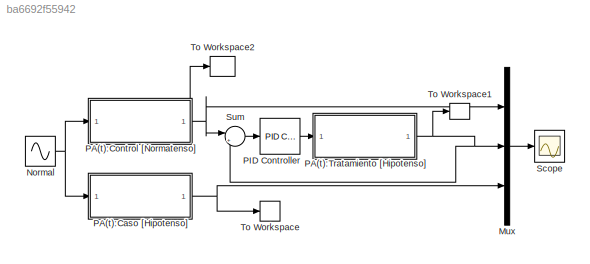
MODEL slx_ba6692f55942
KIND model
CONFIG AbsTol = auto
CONFIG EnableMultiTasking = off
CONFIG FixedStep = auto
CONFIG MaxStep = 1E-3
CONFIG MinStep = auto
CONFIG RelTol = 1e-3
CONFIG SampleTimeConstraint = Unconstrained
CONFIG SolverName = ode45
CONFIG StartTime = 0.0
CONFIG StopTime = 10
BLOCK [Mux] Mux
  DisplayOption = bar
  Inputs = 3
BLOCK [Sin] Normal
  Bias = 0.8
  Frequency = ((2*pi)*(95/60))
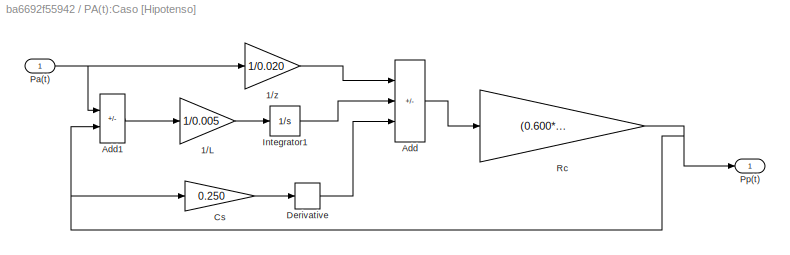
BLOCK [SubSystem] PA(t):Caso [Hipotenso]
BLOCK [Gain] PA(t):Caso [Hipotenso]/1//L
  Gain = 1/0.005
BLOCK [Gain] PA(t):Caso [Hipotenso]/1//z
  Gain = 1/0.020
BLOCK [Sum] PA(t):Caso [Hipotenso]/Add
  IconShape = rectangular
  Inputs = ++-
BLOCK [Sum] PA(t):Caso [Hipotenso]/Add1
  IconShape = rectangular
  Inputs = +-
BLOCK [Gain] PA(t):Caso [Hipotenso]/Cs
  Gain = 0.250
BLOCK [Derivative] PA(t):Caso [Hipotenso]/Derivative
BLOCK [Integrator] PA(t):Caso [Hipotenso]/Integrator1
BLOCK [Inport] PA(t):Caso [Hipotenso]/Pa(t)
BLOCK [Outport] PA(t):Caso [Hipotenso]/Pp(t)
BLOCK [Gain] PA(t):Caso [Hipotenso]/Rc
  Gain = (0.600*0.020)/(0.600+0.020)
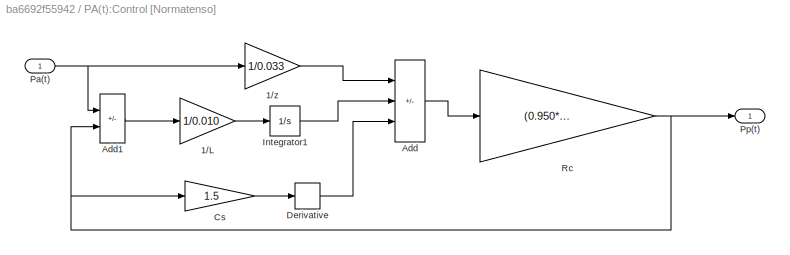
BLOCK [SubSystem] PA(t):Control [Normatenso]
BLOCK [Gain] PA(t):Control [Normatenso]/1//L
  Gain = 1/0.010
BLOCK [Gain] PA(t):Control [Normatenso]/1//z
  Gain = 1/0.033
BLOCK [Sum] PA(t):Control [Normatenso]/Add
  IconShape = rectangular
  Inputs = ++-
BLOCK [Sum] PA(t):Control [Normatenso]/Add1
  IconShape = rectangular
  Inputs = +-
BLOCK [Gain] PA(t):Control [Normatenso]/Cs
  Gain = 1.5
BLOCK [Derivative] PA(t):Control [Normatenso]/Derivative
BLOCK [Integrator] PA(t):Control [Normatenso]/Integrator1
BLOCK [Inport] PA(t):Control [Normatenso]/Pa(t)
BLOCK [Outport] PA(t):Control [Normatenso]/Pp(t)
BLOCK [Gain] PA(t):Control [Normatenso]/Rc
  Gain = (0.950*0.033)/(0.950+0.033)
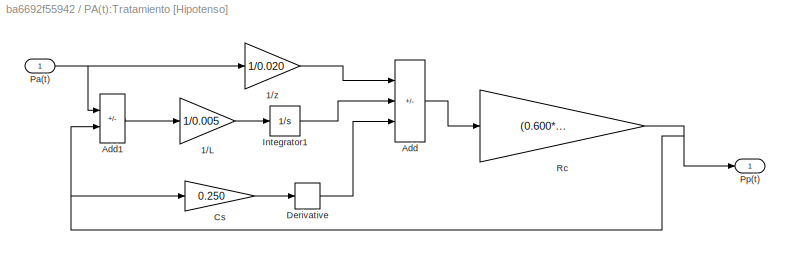
BLOCK [SubSystem] PA(t):Tratamiento [Hipotenso]
BLOCK [Gain] PA(t):Tratamiento [Hipotenso]/1//L
  Gain = 1/0.005
BLOCK [Gain] PA(t):Tratamiento [Hipotenso]/1//z
  Gain = 1/0.020
BLOCK [Sum] PA(t):Tratamiento [Hipotenso]/Add
  IconShape = rectangular
  Inputs = ++-
BLOCK [Sum] PA(t):Tratamiento [Hipotenso]/Add1
  IconShape = rectangular
  Inputs = +-
BLOCK [Gain] PA(t):Tratamiento [Hipotenso]/Cs
  Gain = 0.250
BLOCK [Derivative] PA(t):Tratamiento [Hipotenso]/Derivative
BLOCK [Integrator] PA(t):Tratamiento [Hipotenso]/Integrator1
BLOCK [Inport] PA(t):Tratamiento [Hipotenso]/Pa(t)
BLOCK [Outport] PA(t):Tratamiento [Hipotenso]/Pp(t)
BLOCK [Gain] PA(t):Tratamiento [Hipotenso]/Rc
  Gain = (0.600*0.020)/(0.600+0.020)
BLOCK [Reference] PID Controller  REF=slpidlib/PID Controller
  LibrarySourceBlock = simulink/Continuous/PID Controller
  SourceBlock = slpidlib/PID Controller
  SourceType = PID 1dof
BLOCK [Scope] Scope
  Floating = off
  NumInputPorts = 1
  ScopeSpecificationString = Simulink.scopes.TimeScopeBlockCfg('CurrentConfiguration', extmgr.ConfigurationSet(extmgr.Configuration('Core','General UI',true,'FigureColor',[1 1 1]),extmgr.Configuration('Core','Source UI',true),extmgr.Configuration('Sources','WiredSimulink',true),extmgr.Configuration('Visuals','Time Domain',true,'SerializedDisplays',{struct('MinYLimReal','-0.90113','MaxYLimReal','2.49295','YLabelReal','','MinYL...<+1813ch>
BLOCK [Sum] Sum
  Inputs = |+-
BLOCK [ToWorkspace] To Workspace
  FixptAsFi = on
  MaxDataPoints = inf
  SampleTime = -1
  VariableName = Ppx
BLOCK [ToWorkspace] To Workspace1
  FixptAsFi = on
  MaxDataPoints = inf
  SampleTime = -1
  VariableName = Ppz
BLOCK [ToWorkspace] To Workspace2
  FixptAsFi = on
  MaxDataPoints = inf
  SampleTime = -1
  VariableName = Ppy
LINE Mux:1 -> Scope:1
NET Normal:1 -> PA(t):Caso [Hipotenso]:1, PA(t):Control [Normatenso]:1
LINE PA(t):Caso [Hipotenso]/1//L:1 -> PA(t):Caso [Hipotenso]/Integrator1:1
LINE PA(t):Caso [Hipotenso]/1//z:1 -> PA(t):Caso [Hipotenso]/Add:1
LINE PA(t):Caso [Hipotenso]/Add1:1 -> PA(t):Caso [Hipotenso]/1//L:1
LINE PA(t):Caso [Hipotenso]/Add:1 -> PA(t):Caso [Hipotenso]/Rc:1
LINE PA(t):Caso [Hipotenso]/Cs:1 -> PA(t):Caso [Hipotenso]/Derivative:1
LINE PA(t):Caso [Hipotenso]/Derivative:1 -> PA(t):Caso [Hipotenso]/Add:3
LINE PA(t):Caso [Hipotenso]/Integrator1:1 -> PA(t):Caso [Hipotenso]/Add:2
NET PA(t):Caso [Hipotenso]/Pa(t):1 -> PA(t):Caso [Hipotenso]/1//z:1, PA(t):Caso [Hipotenso]/Add1:1
NET PA(t):Caso [Hipotenso]/Rc:1 -> PA(t):Caso [Hipotenso]/Add1:2, PA(t):Caso [Hipotenso]/Cs:1, PA(t):Caso [Hipotenso]/Pp(t):1
NET PA(t):Caso [Hipotenso]:1 -> Mux:3, To Workspace:1
LINE PA(t):Control [Normatenso]/1//L:1 -> PA(t):Control [Normatenso]/Integrator1:1
LINE PA(t):Control [Normatenso]/1//z:1 -> PA(t):Control [Normatenso]/Add:1
LINE PA(t):Control [Normatenso]/Add1:1 -> PA(t):Control [Normatenso]/1//L:1
LINE PA(t):Control [Normatenso]/Add:1 -> PA(t):Control [Normatenso]/Rc:1
LINE PA(t):Control [Normatenso]/Cs:1 -> PA(t):Control [Normatenso]/Derivative:1
LINE PA(t):Control [Normatenso]/Derivative:1 -> PA(t):Control [Normatenso]/Add:3
LINE PA(t):Control [Normatenso]/Integrator1:1 -> PA(t):Control [Normatenso]/Add:2
NET PA(t):Control [Normatenso]/Pa(t):1 -> PA(t):Control [Normatenso]/1//z:1, PA(t):Control [Normatenso]/Add1:1
NET PA(t):Control [Normatenso]/Rc:1 -> PA(t):Control [Normatenso]/Add1:2, PA(t):Control [Normatenso]/Cs:1, PA(t):Control [Normatenso]/Pp(t):1
NET PA(t):Control [Normatenso]:1 -> Mux:1, Sum:1, To Workspace2:1
LINE PA(t):Tratamiento [Hipotenso]/1//L:1 -> PA(t):Tratamiento [Hipotenso]/Integrator1:1
LINE PA(t):Tratamiento [Hipotenso]/1//z:1 -> PA(t):Tratamiento [Hipotenso]/Add:1
LINE PA(t):Tratamiento [Hipotenso]/Add1:1 -> PA(t):Tratamiento [Hipotenso]/1//L:1
LINE PA(t):Tratamiento [Hipotenso]/Add:1 -> PA(t):Tratamiento [Hipotenso]/Rc:1
LINE PA(t):Tratamiento [Hipotenso]/Cs:1 -> PA(t):Tratamiento [Hipotenso]/Derivative:1
LINE PA(t):Tratamiento [Hipotenso]/Derivative:1 -> PA(t):Tratamiento [Hipotenso]/Add:3
LINE PA(t):Tratamiento [Hipotenso]/Integrator1:1 -> PA(t):Tratamiento [Hipotenso]/Add:2
NET PA(t):Tratamiento [Hipotenso]/Pa(t):1 -> PA(t):Tratamiento [Hipotenso]/1//z:1, PA(t):Tratamiento [Hipotenso]/Add1:1
NET PA(t):Tratamiento [Hipotenso]/Rc:1 -> PA(t):Tratamiento [Hipotenso]/Add1:2, PA(t):Tratamiento [Hipotenso]/Cs:1, PA(t):Tratamiento [Hipotenso]/Pp(t):1
NET PA(t):Tratamiento [Hipotenso]:1 -> Mux:2, Sum:2, To Workspace1:1
LINE PID Controller:1 -> PA(t):Tratamiento [Hipotenso]:1
LINE Sum:1 -> PID Controller:1
note: NET lines group one-source signal fan-out (src -> all destinations, sorted); 1:1 wires keep LINE
